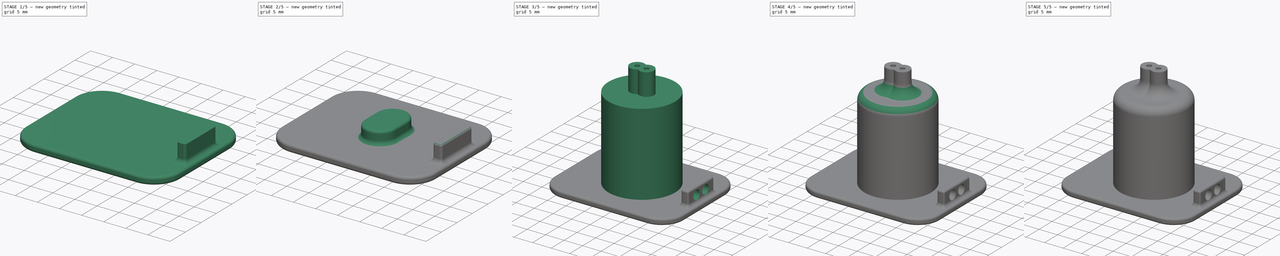
[diagram: build sequence overview — one tinted view per stage of 5, left to right]
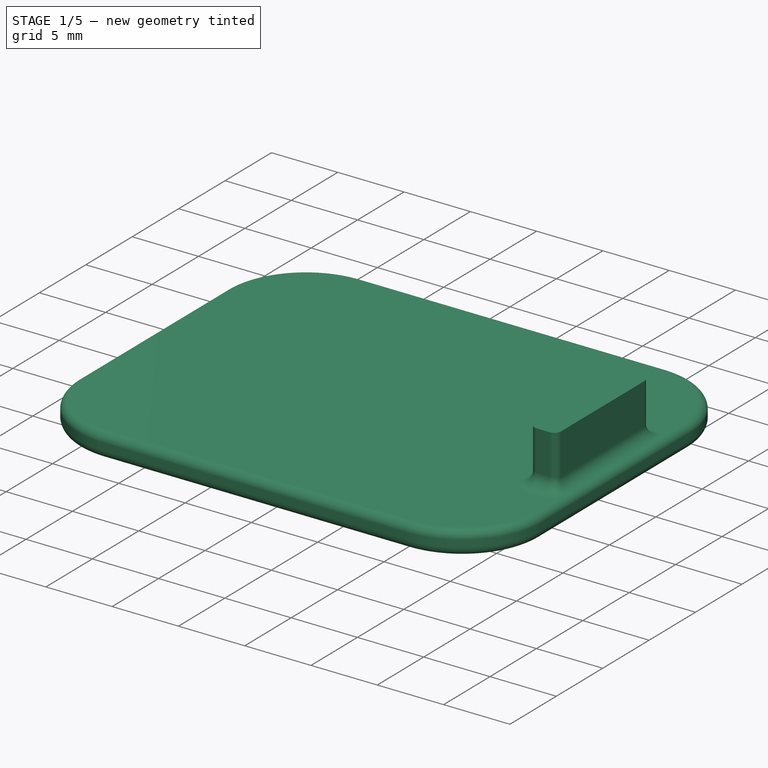
[diagram: stage 1 of 5 — iso view after this stage's code; geometry added in this stage tinted green]
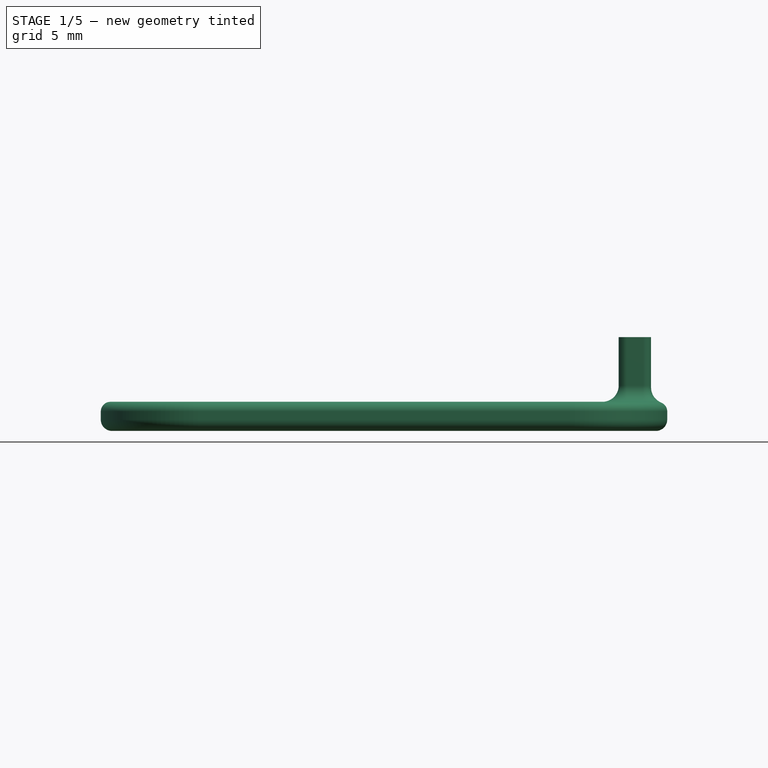
[diagram: stage 1 of 5 — front view after this stage's code; geometry added in this stage tinted green]
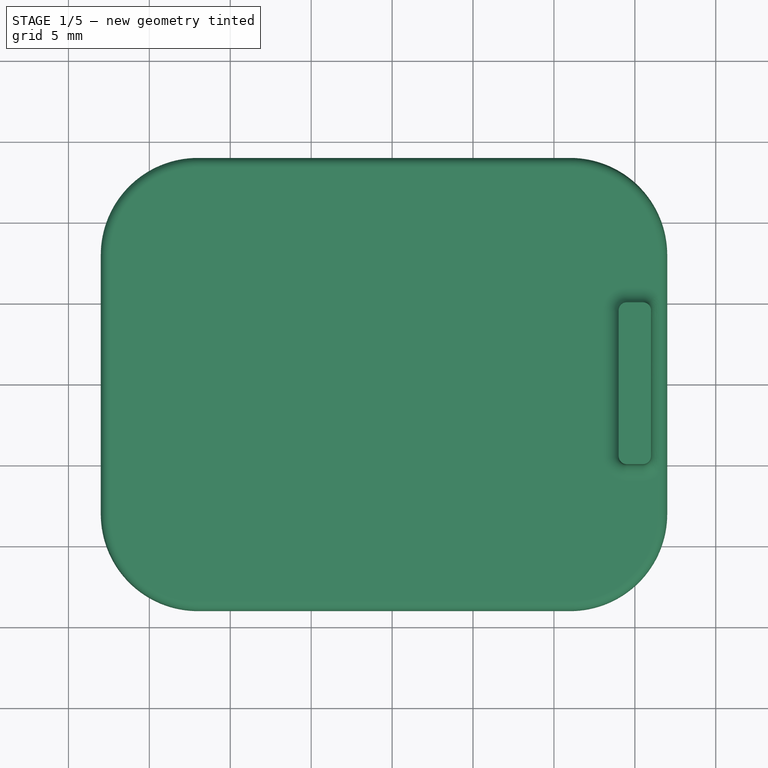
[diagram: stage 1 of 5 — top view after this stage's code; geometry added in this stage tinted green]
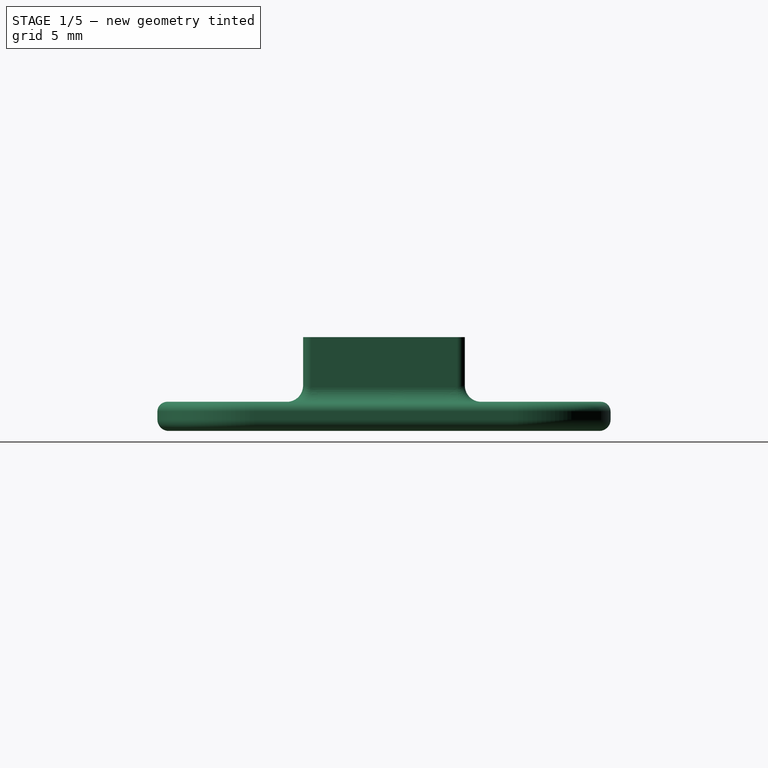
[diagram: stage 1 of 5 — right view after this stage's code; geometry added in this stage tinted green]
FCSTD DOCUMENT  (FreeCAD 0.20R29177 +426 (Git))
Label: Holder
License: All rights reserved
LicenseURL: http://en.wikipedia.org/wiki/All_rights_reserved
objects: PartDesign::Fillet×13, Sketcher::SketchObject×12, PartDesign::Pad×5, PartDesign::Pocket×5, PartDesign::Body×3, PartDesign::Revolution×2, PartDesign::Chamfer×2
note: 69 computed .brp shape members not serialized (recipe doc carries the construction recipe); baked Part::Feature solids carry a one-line shape summary decoded from their .brp

FEATURE [PartDesign::Body] Body002  label="Lens_14mm"
  Group = -> [Sketch003,Revolution001,Sketch004,Pad001,Sketch005,Pocket001,Chamfer001,Fillet003,Fillet004,Fillet005]
  Origin = -> Origin002
  Tip = -> Fillet005
FEATURE [Sketcher::SketchObject] Sketch006
  FullyConstrained = true
  MapMode = 5
  Support = -> [XY_Plane003]
  sketch-geometry (12):
    g0: LineSegment StartX=-12 StartY=14 StartZ=0 EndX=11 EndY=14 EndZ=0
    g1: LineSegment StartX=17 StartY=8 StartZ=0 EndX=17 EndY=-8 EndZ=0
    g2: LineSegment StartX=11 StartY=-14 StartZ=0 EndX=-12 EndY=-14 EndZ=0
    g3: LineSegment StartX=-18 StartY=-8 StartZ=0 EndX=-18 EndY=8 EndZ=0
    g4: ArcOfCircle CenterX=-12 CenterY=8 CenterZ=0 NormalX=0 NormalY=0 NormalZ=1 AngleXU=0 Radius=6 StartAngle=1.5708 EndAngle=3.14159
    g5: GeomPoint X=-18 Y=14 Z=0
    g6: ArcOfCircle CenterX=11 CenterY=8 CenterZ=0 NormalX=0 NormalY=0 NormalZ=1 AngleXU=0 Radius=6 StartAngle=0 EndAngle=1.5708
    g7: GeomPoint X=17 Y=14 Z=0
    g8: ArcOfCircle CenterX=11 CenterY=-8 CenterZ=0 NormalX=0 NormalY=0 NormalZ=1 AngleXU=0 Radius=6 StartAngle=4.71239 EndAngle=6.28319
    g9: GeomPoint X=17 Y=-14 Z=0
    g10: ArcOfCircle CenterX=-12 CenterY=-8 CenterZ=0 NormalX=0 NormalY=0 NormalZ=1 AngleXU=0 Radius=6 StartAngle=3.14159 EndAngle=4.71239
    g11: GeomPoint X=-18 Y=-14 Z=0
  constraints (28):
    c: Horizontal(g0)
    c: Horizontal(g2)
    c: Vertical(g1)
    c: Vertical(g3)
    c: DistanceY(g9,g7) = 28
    c: DistanceX(g11,g9) = 35
    c: PointOnObject(g5,g3)
    c: PointOnObject(g5,g0)
    c: Tangent(g3,g4) = 1.5708
    c: Tangent(g0,g4) = 1.5708
    c: PointOnObject(g7,g0)
    c: PointOnObject(g7,g1)
    c: Tangent(g0,g6) = 1.5708
    c: Tangent(g1,g6) = 1.5708
    c: PointOnObject(g9,g2)
    c: PointOnObject(g9,g1)
    c: Tangent(g2,g8) = 1.5708
    c: Tangent(g1,g8) = 1.5708
    c: PointOnObject(g11,g2)
    c: PointOnObject(g11,g3)
    c: Tangent(g2,g10) = 1.5708
    c: Tangent(g3,g10) = 1.5708
    c: Radius(g4) = 6
    c: Radius(g6) = 6
    c: Radius(g8) = 6
    c: Radius(g10) = 6
    c: DistanceY(g-1,g0) = 14
    c: DistanceX(g3,g-1) = 18
FEATURE [PartDesign::Pad] Pad002
  Direction = (0,0,1)
  Length = 1.8
  Length2 = 10
  Profile = -> Sketch006
  ReferenceAxis = -> Sketch006 [N_Axis]
  Type = 0
FEATURE [PartDesign::Fillet] Fillet006
  Base = -> Pad002 [Edge23,Edge21,Edge18,Edge15,Edge12,Edge9,Edge6,Edge3]
  BaseFeature = -> Pad002
  Radius = 0.7
  SupportTransform = false
  UseAllEdges = false
FEATURE [PartDesign::Fillet] Fillet007
  Base = -> Fillet006 [Edge3,Edge11,Edge12,Edge13,Edge14,Edge15,Edge16,Edge6]
  BaseFeature = -> Fillet006
  Radius = 0.6
  SupportTransform = false
  UseAllEdges = false
FEATURE [Sketcher::SketchObject] Sketch007
  FullyConstrained = true
  MapMode = 5
  Placement = pos=(0,0,1.8) rot=(0,0,1;0rad)
  Support = -> [Fillet007]
  sketch-geometry (12):
    g0: LineSegment StartX=14.5 StartY=5 StartZ=0 EndX=15.5 EndY=5 EndZ=0
    g1: LineSegment StartX=16 StartY=4.5 StartZ=0 EndX=16 EndY=-4.5 EndZ=0
    g2: LineSegment StartX=15.5 StartY=-5 StartZ=0 EndX=14.5 EndY=-5 EndZ=0
    g3: LineSegment StartX=14 StartY=-4.5 StartZ=0 EndX=14 EndY=4.5 EndZ=0
    g4: ArcOfCircle CenterX=14.5 CenterY=4.5 CenterZ=0 NormalX=0 NormalY=0 NormalZ=1 AngleXU=0 Radius=0.5 StartAngle=1.5708 EndAngle=3.14159
    g5: GeomPoint X=14 Y=5 Z=0
    g6: ArcOfCircle CenterX=15.5 CenterY=4.5 CenterZ=0 NormalX=0 NormalY=0 NormalZ=1 AngleXU=0 Radius=0.5 StartAngle=0 EndAngle=1.5708
    g7: GeomPoint X=16 Y=5 Z=0
    g8: ArcOfCircle CenterX=15.5 CenterY=-4.5 CenterZ=0 NormalX=0 NormalY=0 NormalZ=1 AngleXU=0 Radius=0.5 StartAngle=4.71239 EndAngle=6.28319
    g9: GeomPoint X=16 Y=-5 Z=0
    g10: ArcOfCircle CenterX=14.5 CenterY=-4.5 CenterZ=0 NormalX=0 NormalY=0 NormalZ=1 AngleXU=0 Radius=0.5 StartAngle=3.14159 EndAngle=4.71239
    g11: GeomPoint X=14 Y=-5 Z=0
  constraints (28):
    c: Horizontal(g0)
    c: Horizontal(g2)
    c: Vertical(g1)
    c: Vertical(g3)
    c: DistanceY(g9,g7) = 10
    c: DistanceY(g9,g-1) = 5
    c: DistanceX(g11,g9) = 2
    c: DistanceX(g-1,g11) = 14
    c: PointOnObject(g5,g3)
    c: PointOnObject(g5,g0)
    c: Tangent(g3,g4) = 1.5708
    c: Tangent(g0,g4) = 1.5708
    c: PointOnObject(g7,g0)
    c: PointOnObject(g7,g1)
    c: Tangent(g0,g6) = 1.5708
    c: Tangent(g1,g6) = 1.5708
    c: PointOnObject(g9,g1)
    c: PointOnObject(g9,g2)
    c: Tangent(g1,g8) = 1.5708
    c: Tangent(g2,g8) = 1.5708
    c: PointOnObject(g11,g2)
    c: PointOnObject(g11,g3)
    c: Tangent(g2,g10) = 1.5708
    c: Tangent(g3,g10) = 1.5708
    c: Radius(g6) = 0.5
    c: Radius(g4) = 0.5
    c: Equal(g8,g10)
    c: Radius(g8) = 0.5
FEATURE [PartDesign::Pad] Pad003
  BaseFeature = -> Fillet007
  Direction = (0,0,1)
  Length = 4
  Length2 = 10
  Profile = -> Sketch007
  ReferenceAxis = -> Sketch007 [N_Axis]
  Type = 0
FEATURE [PartDesign::Fillet] Fillet008
  Base = -> Pad003 [Edge31]
  BaseFeature = -> Pad003
  Radius = 1
  SupportTransform = false
  UseAllEdges = false
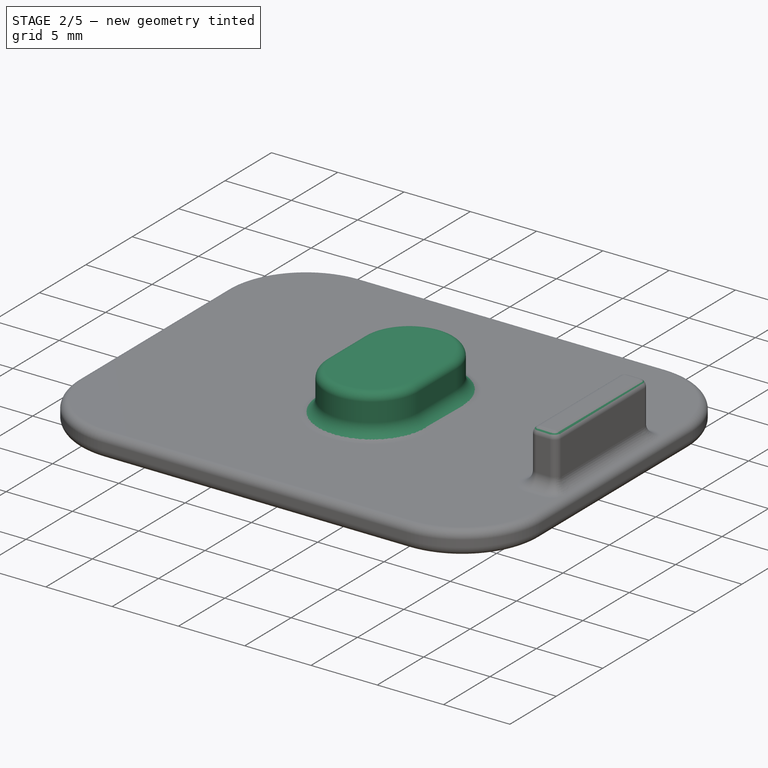
[diagram: stage 2 of 5 — iso view after this stage's code; geometry added in this stage tinted green]
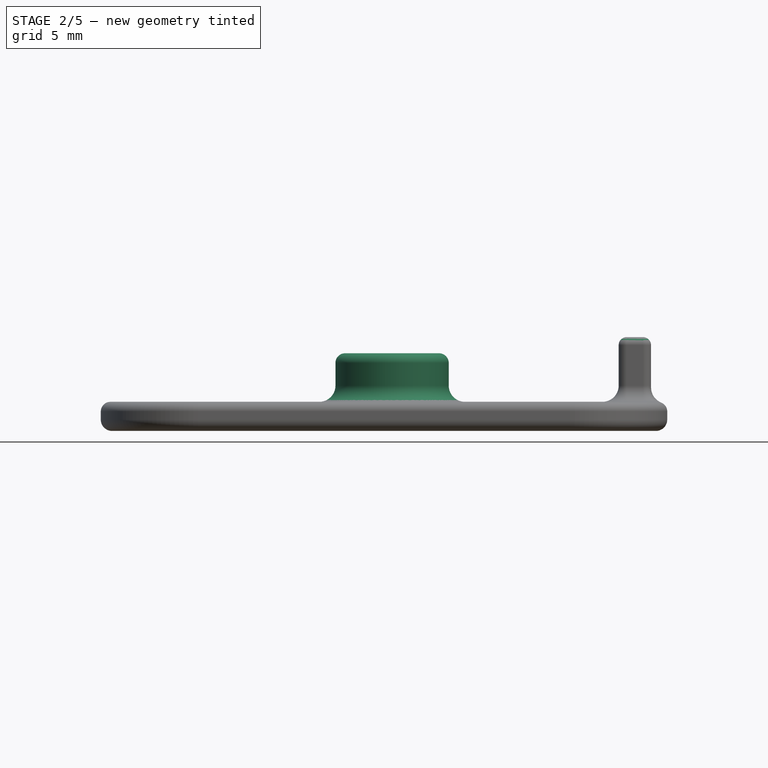
[diagram: stage 2 of 5 — front view after this stage's code; geometry added in this stage tinted green]
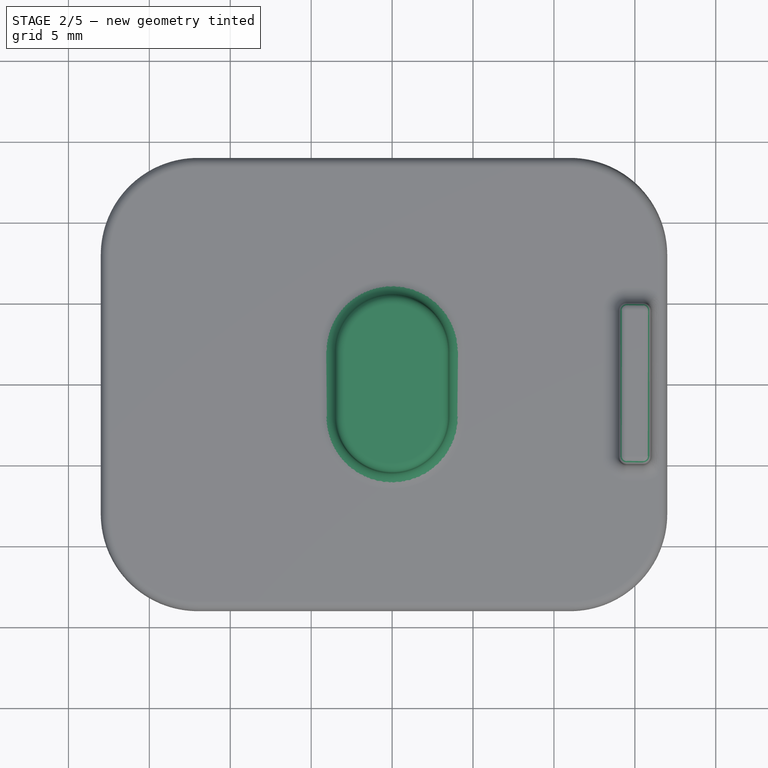
[diagram: stage 2 of 5 — top view after this stage's code; geometry added in this stage tinted green]
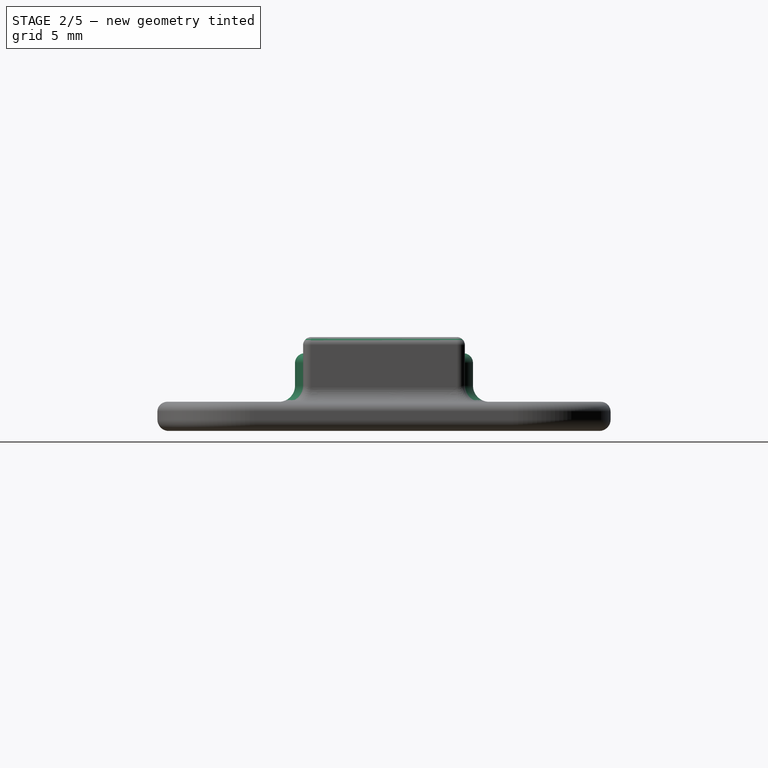
[diagram: stage 2 of 5 — right view after this stage's code; geometry added in this stage tinted green]
FEATURE [PartDesign::Fillet] Fillet009
  Base = -> Fillet008 [Edge81]
  BaseFeature = -> Fillet008
  Radius = 0.5
  SupportTransform = false
  UseAllEdges = false
FEATURE [Sketcher::SketchObject] Sketch008
  FullyConstrained = true
  MapMode = 5
  Placement = pos=(0,0,1.8) rot=(0,0,1;0rad)
  Support = -> [Fillet009]
  sketch-geometry (4):
    g0: ArcOfCircle CenterX=0 CenterY=2 CenterZ=0 NormalX=0 NormalY=0 NormalZ=1 AngleXU=0 Radius=3.5 StartAngle=-5.6e-14 EndAngle=3.14159
    g1: ArcOfCircle CenterX=0 CenterY=-2 CenterZ=0 NormalX=0 NormalY=0 NormalZ=1 AngleXU=0 Radius=3.5 StartAngle=3.14159 EndAngle=6.28319
    g2: LineSegment StartX=-3.5 StartY=2 StartZ=0 EndX=-3.5 EndY=-2 EndZ=0
    g3: LineSegment StartX=3.5 StartY=-2 StartZ=0 EndX=3.5 EndY=2 EndZ=0
  constraints (10):
    c: Tangent(g0,g2) = -1.5708
    c: Tangent(g2,g1) = -1.5708
    c: Tangent(g1,g3) = -1.5708
    c: Tangent(g3,g0) = -1.5708
    c: Equal(g0,g1)
    c: PointOnObject(g0,g-2)
    c: PointOnObject(g1,g-2)
    c: DistanceY(g1,g-1) = 2
    c: DistanceY(g-1,g0) = 2
    c: DistanceX(g0,g0) = 7
FEATURE [PartDesign::Pad] Pad004
  BaseFeature = -> Fillet009
  Direction = (0,0,1)
  Length = 3
  Length2 = 10
  Profile = -> Sketch008
  ReferenceAxis = -> Sketch008 [N_Axis]
  Type = 0
FEATURE [Sketcher::SketchObject] Sketch009
  FullyConstrained = true
  MapMode = 5
  Placement = pos=(0,0,0) rot=(1,0,0;3.14159rad)
  Support = -> [Pad004]
  sketch-geometry (4):
    g0: ArcOfCircle CenterX=0 CenterY=0.7 CenterZ=0 NormalX=0 NormalY=0 NormalZ=1 AngleXU=0 Radius=2.4 StartAngle=0 EndAngle=3.14159
    g1: ArcOfCircle CenterX=0 CenterY=-0.7 CenterZ=0 NormalX=0 NormalY=0 NormalZ=1 AngleXU=0 Radius=2.4 StartAngle=3.14159 EndAngle=6.28319
    g2: LineSegment StartX=-2.4 StartY=0.7 StartZ=0 EndX=-2.4 EndY=-0.7 EndZ=0
    g3: LineSegment StartX=2.4 StartY=-0.7 StartZ=0 EndX=2.4 EndY=0.7 EndZ=0
  constraints (10):
    c: Tangent(g0,g2) = -1.5708
    c: Tangent(g2,g1) = -1.5708
    c: Tangent(g1,g3) = -1.5708
    c: Tangent(g3,g0) = -1.5708
    c: Equal(g0,g1)
    c: PointOnObject(g0,g-2)
    c: PointOnObject(g1,g-2)
    c: DistanceX(g1,g1) = 4.8
    c: DistanceY(g-1,g0) = 0.7
    c: DistanceY(g1,g-1) = 0.7
FEATURE [PartDesign::Pocket] Pocket002
  BaseFeature = -> Pad004
  Direction = (0,0,1)
  Length = 3.5
  Length2 = 5
  Profile = -> Sketch009
  ReferenceAxis = -> Sketch009 [N_Axis]
  Type = 0
FEATURE [PartDesign::Fillet] Fillet010
  Base = -> Pocket002 [Edge129]
  BaseFeature = -> Pocket002
  Radius = 0.6
  SupportTransform = false
  UseAllEdges = false
FEATURE [PartDesign::Fillet] Fillet011
  Base = -> Fillet010 [Edge88]
  BaseFeature = -> Fillet010
  Radius = 1
  SupportTransform = false
  UseAllEdges = false
FEATURE [PartDesign::Fillet] Fillet012
  Base = -> Fillet011 [Edge64]
  BaseFeature = -> Fillet011
  Radius = 0.6
  SupportTransform = false
  UseAllEdges = false
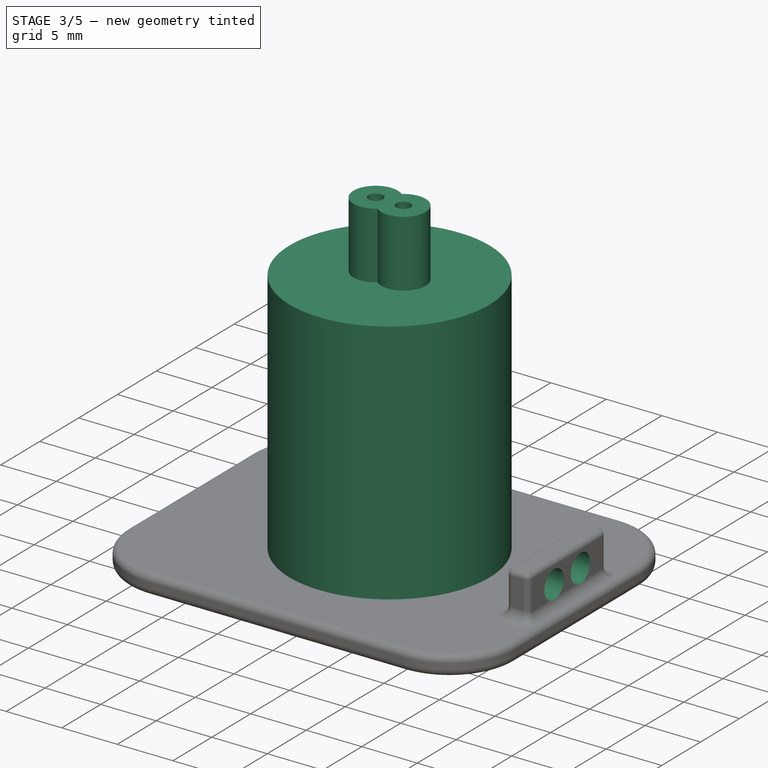
[diagram: stage 3 of 5 — iso view after this stage's code; geometry added in this stage tinted green]
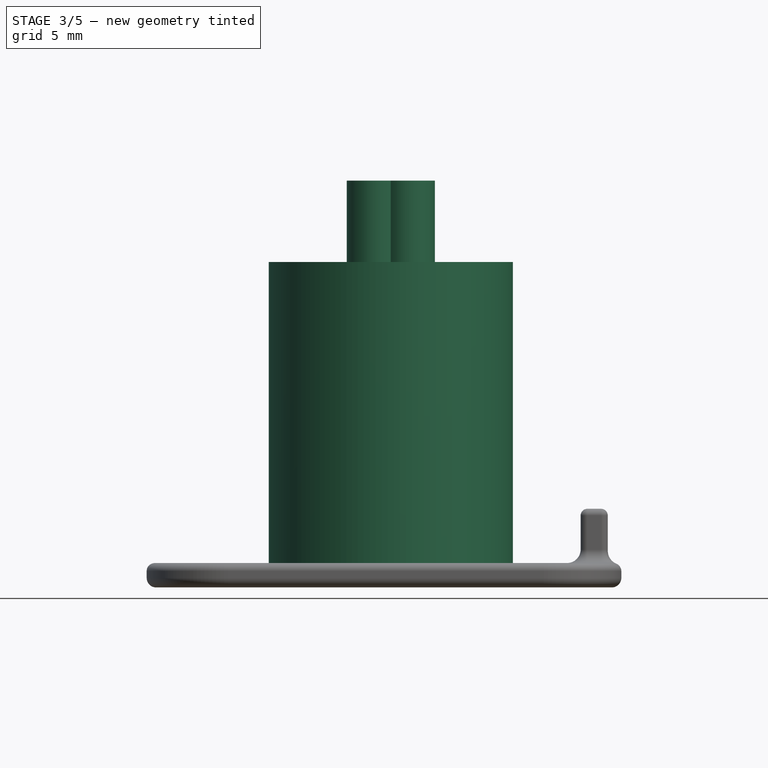
[diagram: stage 3 of 5 — front view after this stage's code; geometry added in this stage tinted green]
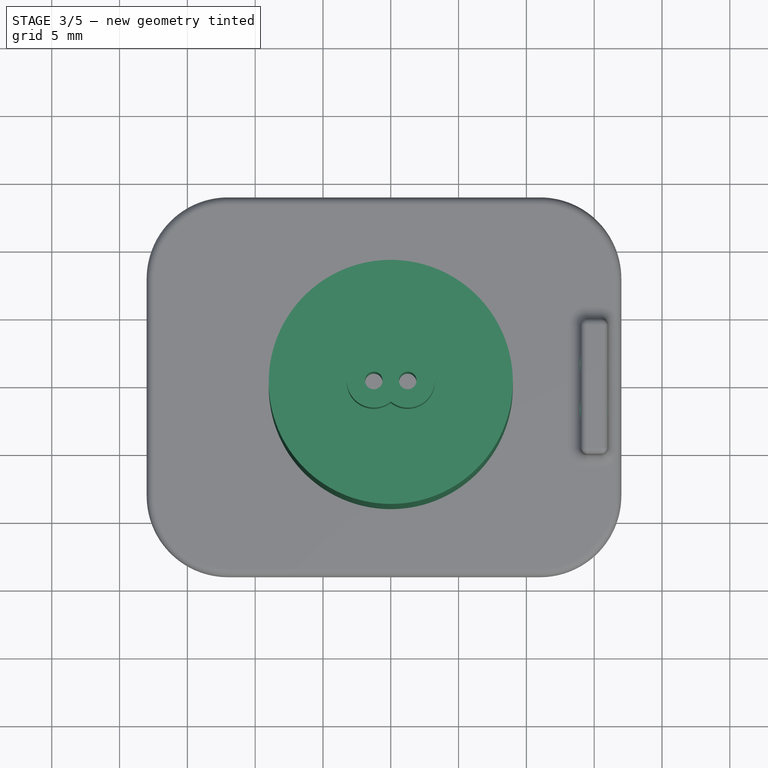
[diagram: stage 3 of 5 — top view after this stage's code; geometry added in this stage tinted green]
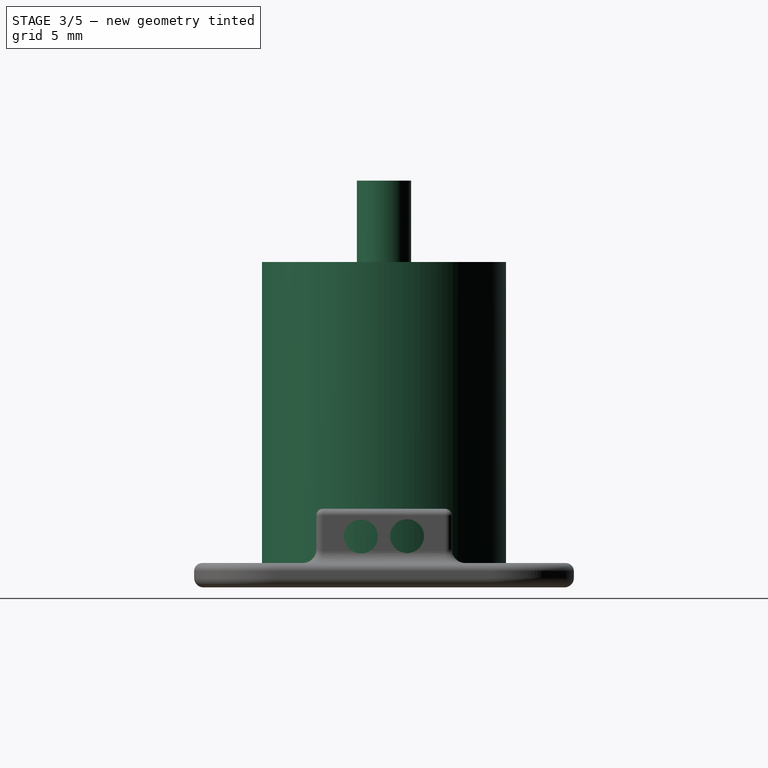
[diagram: stage 3 of 5 — right view after this stage's code; geometry added in this stage tinted green]
FEATURE [PartDesign::Body] Body  label="Lens_9mm"
  Group = -> [Sketch,Revolution,Sketch001,Pad,Sketch002,Pocket,Chamfer,Fillet,Fillet001,Fillet002]
  Origin = -> Origin
  Placement = pos=(20,0,0) rot=(0,0,1;0rad)
  Tip = -> Fillet002
FEATURE [Sketcher::SketchObject] Sketch003
  FullyConstrained = false
  MapMode = 5
  Placement = pos=(0,0,0) rot=(1,0,0;1.5708rad)
  Support = -> [XZ_Plane002]
  sketch-geometry (10):
    g0: LineSegment StartX=7 StartY=0 StartZ=0 EndX=7 EndY=8 EndZ=0
    g1: LineSegment StartX=7 StartY=8 StartZ=0 EndX=2.7 EndY=18.5 EndZ=0
    g2: LineSegment StartX=2.7 StartY=18.5 StartZ=0 EndX=2.7 EndY=19.5 EndZ=0
    g3: LineSegment StartX=2.7 StartY=19.5 StartZ=0 EndX=3.1 EndY=19.5 EndZ=0
    g4: LineSegment StartX=3.1 StartY=19.5 StartZ=0 EndX=3.1 EndY=21 EndZ=0
    g5: LineSegment StartX=3.1 StartY=21 StartZ=0 EndX=0 EndY=21 EndZ=0
    g6: LineSegment StartX=0 StartY=21 StartZ=0 EndX=0 EndY=24 EndZ=0
    g7: LineSegment StartX=0 StartY=24 StartZ=0 EndX=9 EndY=24 EndZ=0
    g8: LineSegment StartX=9 StartY=24 StartZ=0 EndX=9 EndY=0 EndZ=0
    g9: LineSegment StartX=9 StartY=0 StartZ=0 EndX=7 EndY=0 EndZ=0
  constraints (29):
    c: PointOnObject(g0,g-1)
    c: Vertical(g0)
    c: Coincident(g0,g1)
    c: Coincident(g1,g2)
    c: Coincident(g2,g3)
    c: Coincident(g3,g4)
    c: Coincident(g4,g5)
    c: Horizontal(g5)
    c: Coincident(g5,g6)
    c: PointOnObject(g6,g-2)
    c: Vertical(g6)
    c: Coincident(g6,g7)
    c: Horizontal(g7)
    c: Coincident(g7,g8)
    c: Vertical(g8)
    c: Coincident(g8,g9)
    c: Coincident(g9,g0)
    c: Horizontal(g9)
    c: DistanceX(g-1,g0) = 7
    c: DistanceX(g-1,g8) = 9
    c: DistanceY(g0,g0) = 8
    c: DistanceY(g4,g4) = 1.5
    c: DistanceX(g5,g5) = 3.1
    c: DistanceY(g0,g4) = 13
    c: Parallel(g-2,g2)
    c: DistanceY(g2,g2) = 1
    c: Perpendicular(g-2,g3)
    c: DistanceY(g8,g8) = 24
    c: DistanceX(g-1,g1) = 2.7
FEATURE [PartDesign::Revolution] Revolution001
  Angle = 360
  Axis = (0,-2e-16,1)
  Base = (0,0,0)
  Placement = pos=(0,0,0) rot=(1,0,0;1.5708rad)
  Profile = -> Sketch003
  ReferenceAxis = -> Sketch003 [V_Axis]
  Reversed = true
FEATURE [Sketcher::SketchObject] Sketch004
  FullyConstrained = false
  MapMode = 5
  Placement = pos=(0,5.3e-15,24) rot=(0,0,1;3.14159rad)
  Support = -> [Revolution001]
  sketch-geometry (2):
    g0: ArcOfCircle CenterX=1.25 CenterY=-3.03479e-07 CenterZ=0 NormalX=0 NormalY=0 NormalZ=1 AngleXU=0 Radius=1.99686 StartAngle=4.03761 EndAngle=8.52876
    g1: ArcOfCircle CenterX=-1.25 CenterY=0 CenterZ=0 NormalX=0 NormalY=0 NormalZ=1 AngleXU=0 Radius=2 StartAngle=0.894054 EndAngle=5.38913
  constraints (2):
    c: Coincident(g1,g0)
    c: Coincident(g1,g0)
FEATURE [PartDesign::Pad] Pad001
  BaseFeature = -> Revolution001
  Direction = (0,-2e-16,1)
  Length = 6
  Length2 = 10
  Placement = pos=(0,0,0) rot=(1,0,0;1.5708rad)
  Profile = -> Sketch004
  ReferenceAxis = -> Sketch004 [N_Axis]
  Type = 0
FEATURE [Sketcher::SketchObject] Sketch005
  FullyConstrained = true
  MapMode = 5
  Placement = pos=(0,6.7e-15,30) rot=(0,0,1;3.14159rad)
  Support = -> [Pad001]
  sketch-geometry (2):
    g0: Circle CenterX=-1.25 CenterY=0 CenterZ=0 NormalX=0 NormalY=0 NormalZ=1 AngleXU=0 Radius=0.65
    g1: Circle CenterX=1.25 CenterY=0 CenterZ=0 NormalX=0 NormalY=0 NormalZ=1 AngleXU=0 Radius=0.65
  constraints (6):
    c: PointOnObject(g0,g-1)
    c: PointOnObject(g1,g-1)
    c: DistanceX(g0,g-1) = 1.25
    c: DistanceX(g-1,g1) = 1.25
    c: Equal(g0,g1)
    c: Diameter(g0) = 1.3
FEATURE [PartDesign::Pocket] Pocket001
  BaseFeature = -> Pad001
  Direction = (0,0,-1)
  Length = 10
  Length2 = 5
  Placement = pos=(0,0,0) rot=(1,0,0;1.5708rad)
  Profile = -> Sketch005
  ReferenceAxis = -> Sketch005 [N_Axis]
  Type = 0
FEATURE [Sketcher::SketchObject] Sketch010
  FullyConstrained = false
  MapMode = 5
  Placement = pos=(3.5,0,0) rot=(0.57735,0.57735,0.57735;2.0944rad)
  Support = -> [Fillet012]
  sketch-geometry (2):
    g0: Circle CenterX=-1.7 CenterY=3.49047 CenterZ=0 NormalX=0 NormalY=0 NormalZ=1 AngleXU=0 Radius=0.75
    g1: Circle CenterX=1.7 CenterY=3.48031 CenterZ=0 NormalX=0 NormalY=0 NormalZ=1 AngleXU=0 Radius=0.75
  constraints (4):
    c: DistanceX(g-1,g1) = 1.7
    c: DistanceX(g0,g-1) = 1.7
    c: Equal(g1,g0)
    c: Diameter(g1) = 1.5
FEATURE [PartDesign::Pocket] Pocket003
  BaseFeature = -> Fillet012
  Direction = (-1,0,0)
  Length = 4.3
  Length2 = 5
  Profile = -> Sketch010
  ReferenceAxis = -> Sketch010 [N_Axis]
  Type = 0
FEATURE [Sketcher::SketchObject] Sketch011
  FullyConstrained = false
  MapMode = 5
  Placement = pos=(16,0,0) rot=(0.57735,0.57735,0.57735;2.0944rad)
  Support = -> [Pocket003]
  sketch-geometry (2):
    g0: Circle CenterX=-1.7 CenterY=3.75016 CenterZ=0 NormalX=0 NormalY=0 NormalZ=1 AngleXU=0 Radius=1.25
    g1: Circle CenterX=1.7 CenterY=3.78064 CenterZ=0 NormalX=0 NormalY=0 NormalZ=1 AngleXU=0 Radius=1.25
  constraints (4):
    c: DistanceX(g-1,g1) = 1.7
    c: DistanceX(g0,g-1) = 1.7
    c: Equal(g0,g1)
    c: Diameter(g0) = 2.5
FEATURE [PartDesign::Pocket] Pocket004
  BaseFeature = -> Pocket003
  Direction = (-1,0,0)
  Length = 5
  Length2 = 5
  Midplane = true
  Profile = -> Sketch011
  ReferenceAxis = -> Sketch011 [N_Axis]
  Type = 0
FEATURE [PartDesign::Body] Body003  label="PhotoResistor"
  Group = -> [Sketch006,Pad002,Fillet006,Fillet007,Sketch007,Pad003,Fillet008,Fillet009,Sketch008,Pad004,Sketch009,Pocket002,Fillet010,Fillet011,Fillet012,Sketch010,Pocket003,Sketch011,Pocket004]
  Origin = -> Origin003
  Placement = pos=(10,27,0) rot=(0,0,1;0rad)
  Tip = -> Pocket004
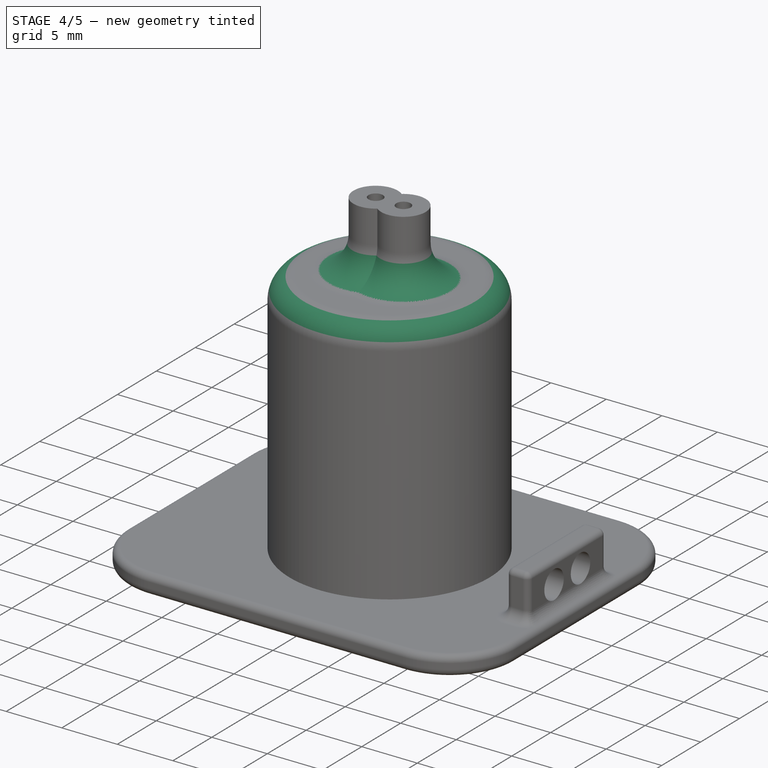
[diagram: stage 4 of 5 — iso view after this stage's code; geometry added in this stage tinted green]
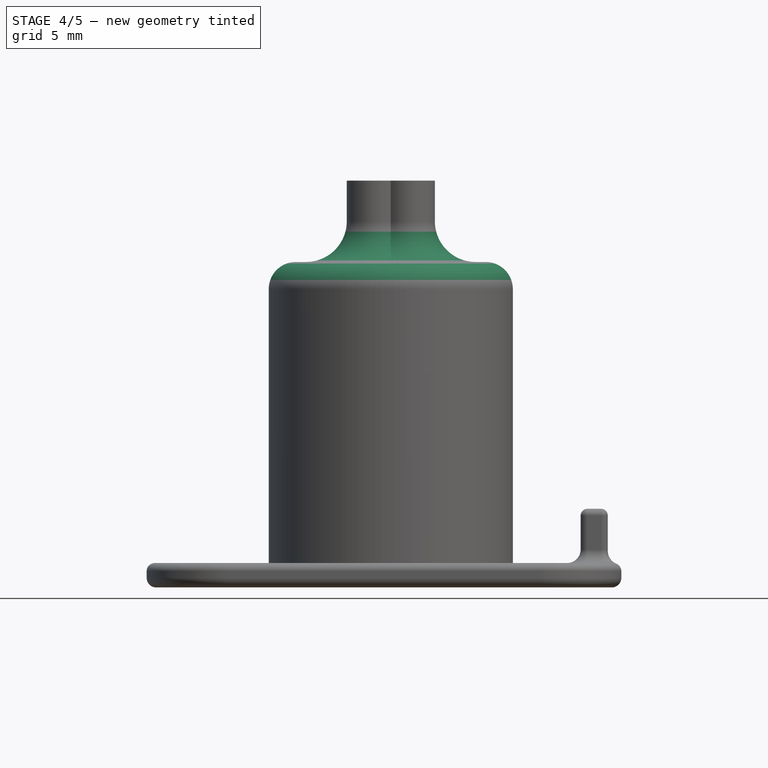
[diagram: stage 4 of 5 — front view after this stage's code; geometry added in this stage tinted green]
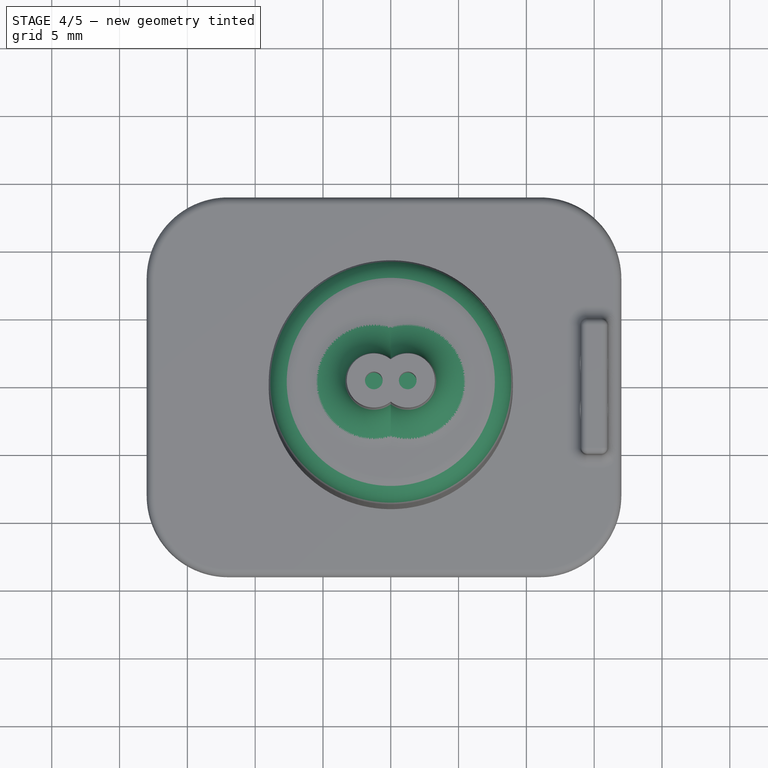
[diagram: stage 4 of 5 — top view after this stage's code; geometry added in this stage tinted green]
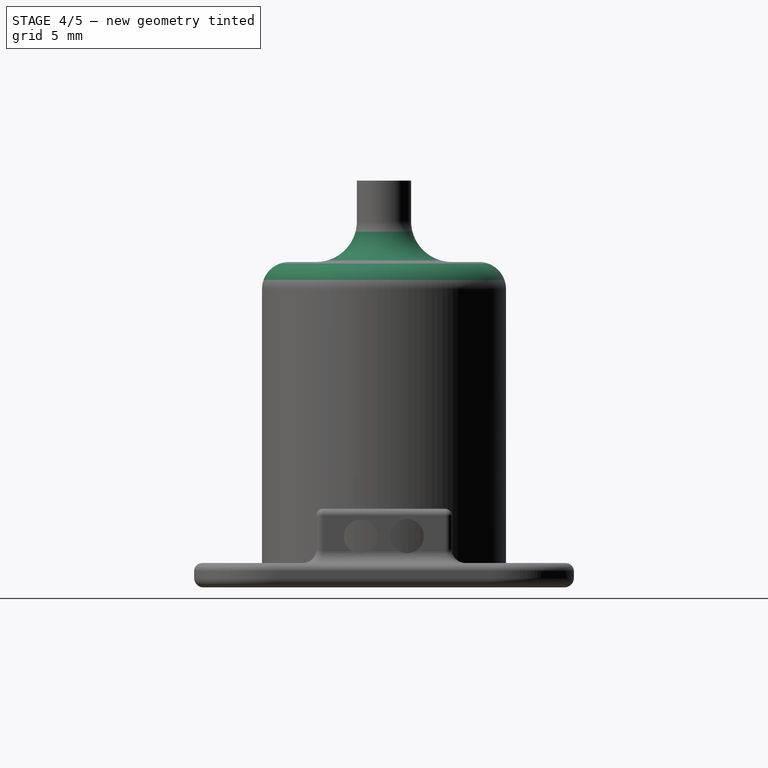
[diagram: stage 4 of 5 — right view after this stage's code; geometry added in this stage tinted green]
FEATURE [Sketcher::SketchObject] Sketch
  FullyConstrained = true
  MapMode = 5
  Placement = pos=(0,0,0) rot=(1,0,0;1.5708rad)
  Support = -> [XZ_Plane]
  sketch-geometry (10):
    g0: LineSegment StartX=4.6 StartY=0 StartZ=0 EndX=4.6 EndY=7 EndZ=0
    g1: LineSegment StartX=4.6 StartY=7 StartZ=0 EndX=2.7 EndY=14.5 EndZ=0
    g2: LineSegment StartX=2.7 StartY=14.5 StartZ=0 EndX=2.7 EndY=15.5 EndZ=0
    g3: LineSegment StartX=2.7 StartY=15.5 StartZ=0 EndX=3.1 EndY=15.5 EndZ=0
    g4: LineSegment StartX=3.1 StartY=15.5 StartZ=0 EndX=3.1 EndY=17 EndZ=0
    g5: LineSegment StartX=3.1 StartY=17 StartZ=0 EndX=0 EndY=17 EndZ=0
    g6: LineSegment StartX=0 StartY=17 StartZ=0 EndX=0 EndY=20 EndZ=0
    g7: LineSegment StartX=0 StartY=20 StartZ=0 EndX=7 EndY=20 EndZ=0
    g8: LineSegment StartX=7 StartY=20 StartZ=0 EndX=7 EndY=0 EndZ=0
    g9: LineSegment StartX=7 StartY=0 StartZ=0 EndX=4.6 EndY=0 EndZ=0
  constraints (30):
    c: PointOnObject(g0,g-1)
    c: Vertical(g0)
    c: Coincident(g0,g1)
    c: Coincident(g1,g2)
    c: Coincident(g2,g3)
    c: Coincident(g3,g4)
    c: Vertical(g4)
    c: Coincident(g4,g5)
    c: Horizontal(g5)
    c: Coincident(g5,g6)
    c: PointOnObject(g6,g-2)
    c: Vertical(g6)
    c: Coincident(g6,g7)
    c: Horizontal(g7)
    c: Coincident(g7,g8)
    c: Vertical(g8)
    c: Coincident(g8,g9)
    c: Coincident(g9,g0)
    c: Horizontal(g9)
    c: DistanceX(g-1,g0) = 4.6
    c: DistanceX(g-1,g8) = 7
    c: DistanceY(g0,g0) = 7
    c: DistanceY(g4,g4) = 1.5
    c: DistanceX(g5,g5) = 3.1
    c: DistanceY(g0,g4) = 10
    c: Parallel(g-2,g2)
    c: DistanceY(g2,g2) = 1
    c: Perpendicular(g-2,g3)
    c: DistanceY(g8,g8) = 20
    c: DistanceX(g-1,g1) = 2.7
FEATURE [PartDesign::Revolution] Revolution
  Angle = 360
  Axis = (0,-2e-16,1)
  Base = (0,0,0)
  Placement = pos=(0,0,0) rot=(1,0,0;1.5708rad)
  Profile = -> Sketch
  ReferenceAxis = -> Sketch [V_Axis]
  Reversed = true
FEATURE [Sketcher::SketchObject] Sketch001
  FullyConstrained = false
  MapMode = 5
  Placement = pos=(0,4.4e-15,20) rot=(0,0,1;3.14159rad)
  Support = -> [Revolution]
  sketch-geometry (2):
    g0: ArcOfCircle CenterX=1.25 CenterY=-3.03479e-07 CenterZ=0 NormalX=0 NormalY=0 NormalZ=1 AngleXU=0 Radius=1.99686 StartAngle=4.03761 EndAngle=8.52876
    g1: ArcOfCircle CenterX=-1.25 CenterY=0 CenterZ=0 NormalX=0 NormalY=0 NormalZ=1 AngleXU=0 Radius=2 StartAngle=0.894054 EndAngle=5.38913
  constraints (2):
    c: Coincident(g1,g0)
    c: Coincident(g1,g0)
FEATURE [PartDesign::Pad] Pad
  BaseFeature = -> Revolution
  Direction = (0,-2e-16,1)
  Length = 6
  Length2 = 10
  Placement = pos=(0,0,0) rot=(1,0,0;1.5708rad)
  Profile = -> Sketch001
  ReferenceAxis = -> Sketch001 [N_Axis]
  Type = 0
FEATURE [PartDesign::Chamfer] Chamfer001
  Angle = 45
  Base = -> Pocket001 [Edge1]
  BaseFeature = -> Pocket001
  ChamferType = 0
  FlipDirection = false
  Placement = pos=(0,0,0) rot=(1,0,0;1.5708rad)
  Size = 0.7
  Size2 = 1
  SupportTransform = false
  UseAllEdges = false
FEATURE [PartDesign::Fillet] Fillet003
  Base = -> Chamfer001 [Edge8]
  BaseFeature = -> Chamfer001
  Placement = pos=(0,0,0) rot=(1,0,0;1.5708rad)
  Radius = 1
  SupportTransform = false
  UseAllEdges = false
FEATURE [PartDesign::Fillet] Fillet004
  Base = -> Fillet003 [Edge8]
  BaseFeature = -> Fillet003
  Placement = pos=(0,0,0) rot=(1,0,0;1.5708rad)
  Radius = 2
  SupportTransform = false
  UseAllEdges = false
FEATURE [PartDesign::Fillet] Fillet005
  Base = -> Fillet004 [Edge8,Edge9]
  BaseFeature = -> Fillet004
  Placement = pos=(0,0,0) rot=(1,0,0;1.5708rad)
  Radius = 3
  SupportTransform = false
  UseAllEdges = false
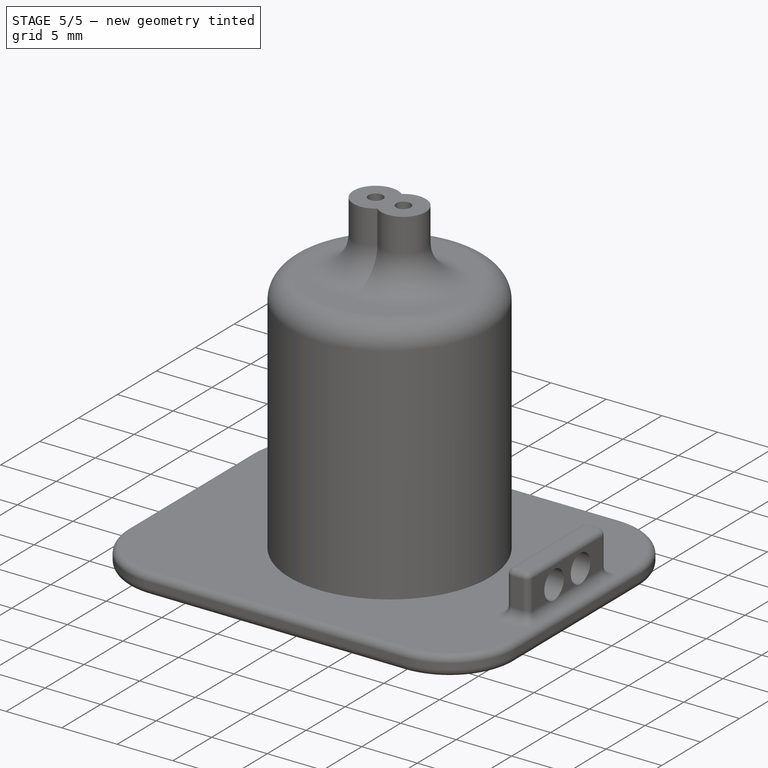
[diagram: stage 5 of 5 — iso view after this stage's code; geometry added in this stage tinted green]
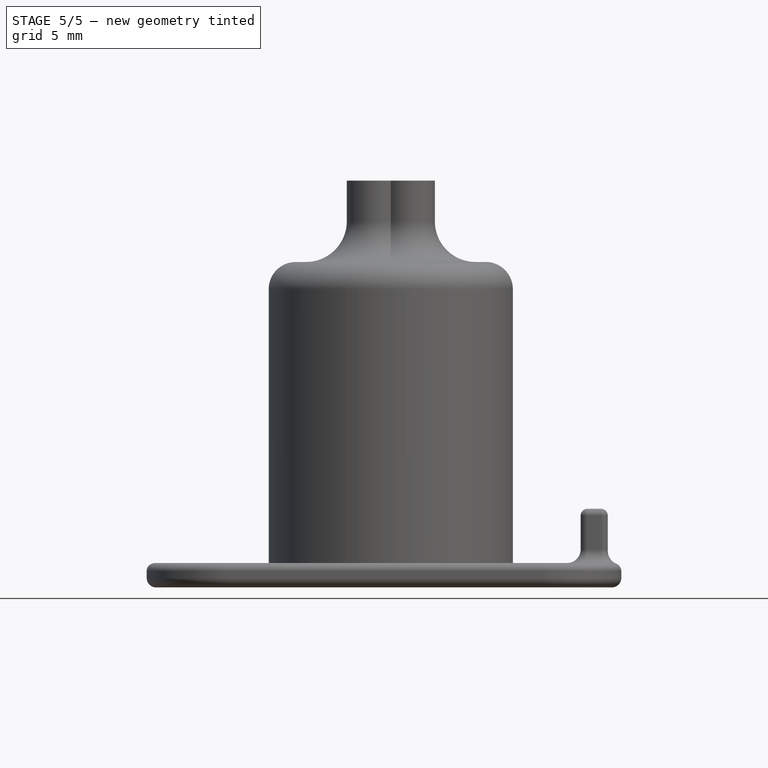
[diagram: stage 5 of 5 — front view after this stage's code; geometry added in this stage tinted green]
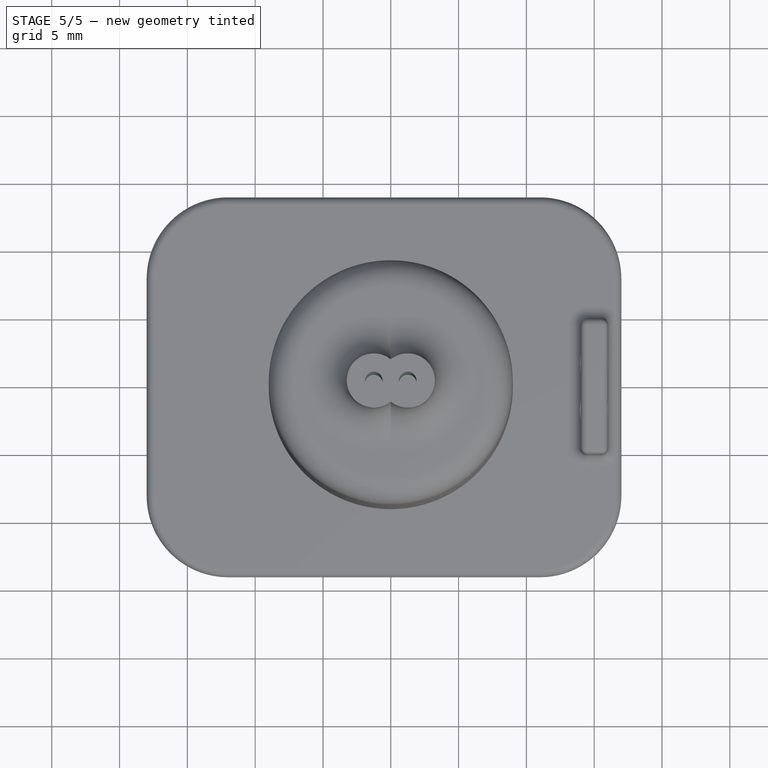
[diagram: stage 5 of 5 — top view after this stage's code; geometry added in this stage tinted green]
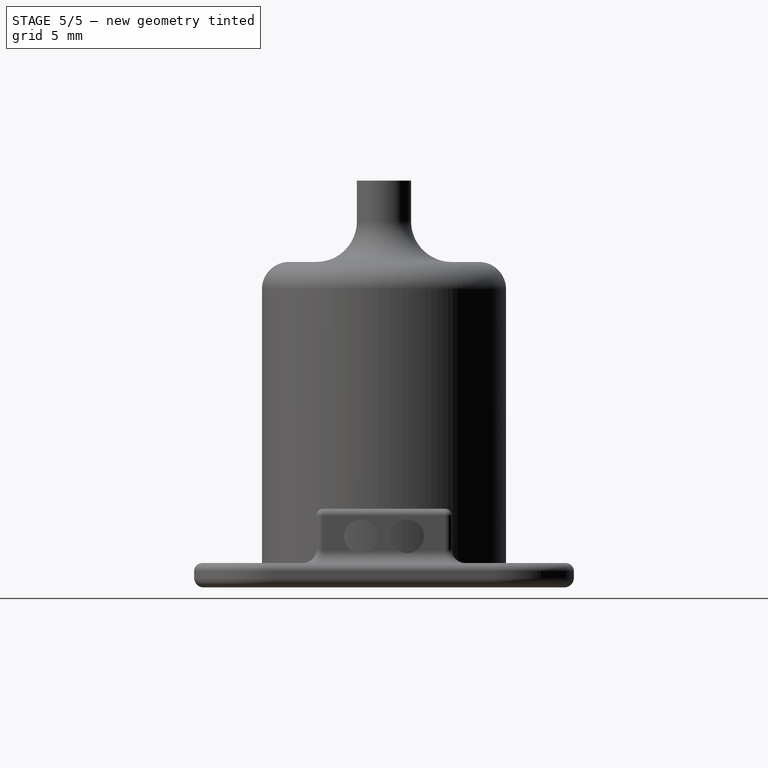
[diagram: stage 5 of 5 — right view after this stage's code; geometry added in this stage tinted green]
FEATURE [Sketcher::SketchObject] Sketch002
  FullyConstrained = true
  MapMode = 5
  Placement = pos=(0,5.8e-15,26) rot=(0,0,1;3.14159rad)
  Support = -> [Pad]
  sketch-geometry (2):
    g0: Circle CenterX=-1.25 CenterY=0 CenterZ=0 NormalX=0 NormalY=0 NormalZ=1 AngleXU=0 Radius=0.65
    g1: Circle CenterX=1.25 CenterY=0 CenterZ=0 NormalX=0 NormalY=0 NormalZ=1 AngleXU=0 Radius=0.65
  constraints (6):
    c: PointOnObject(g0,g-1)
    c: PointOnObject(g1,g-1)
    c: DistanceX(g0,g-1) = 1.25
    c: DistanceX(g-1,g1) = 1.25
    c: Equal(g0,g1)
    c: Diameter(g0) = 1.3
FEATURE [PartDesign::Pocket] Pocket
  BaseFeature = -> Pad
  Direction = (0,0,-1)
  Length = 10
  Length2 = 5
  Placement = pos=(0,0,0) rot=(1,0,0;1.5708rad)
  Profile = -> Sketch002
  ReferenceAxis = -> Sketch002 [N_Axis]
  Type = 0
FEATURE [PartDesign::Chamfer] Chamfer
  Angle = 45
  Base = -> Pocket [Edge1]
  BaseFeature = -> Pocket
  ChamferType = 0
  FlipDirection = false
  Placement = pos=(0,0,0) rot=(1,0,0;1.5708rad)
  Size = 0.7
  Size2 = 1
  SupportTransform = false
  UseAllEdges = false
FEATURE [PartDesign::Fillet] Fillet
  Base = -> Chamfer [Edge8]
  BaseFeature = -> Chamfer
  Placement = pos=(0,0,0) rot=(1,0,0;1.5708rad)
  Radius = 1
  SupportTransform = false
  UseAllEdges = false
FEATURE [PartDesign::Fillet] Fillet001
  Base = -> Fillet [Edge8]
  BaseFeature = -> Fillet
  Placement = pos=(0,0,0) rot=(1,0,0;1.5708rad)
  Radius = 2
  SupportTransform = false
  UseAllEdges = false
FEATURE [PartDesign::Fillet] Fillet002
  Base = -> Fillet001 [Edge8,Edge9]
  BaseFeature = -> Fillet001
  Placement = pos=(0,0,0) rot=(1,0,0;1.5708rad)
  Radius = 2
  SupportTransform = false
  UseAllEdges = false
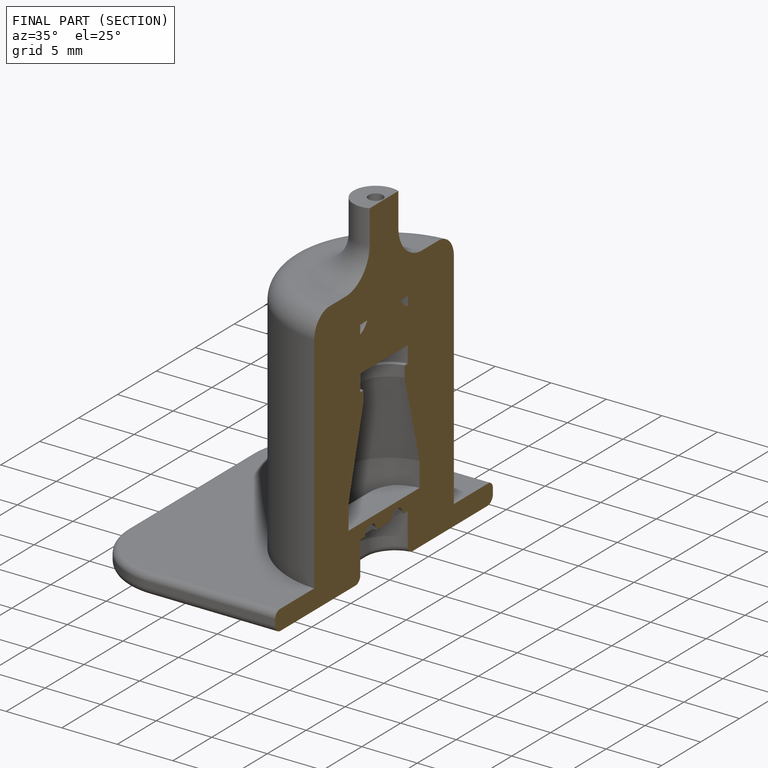
[diagram: finished part — half-section view (interior)]
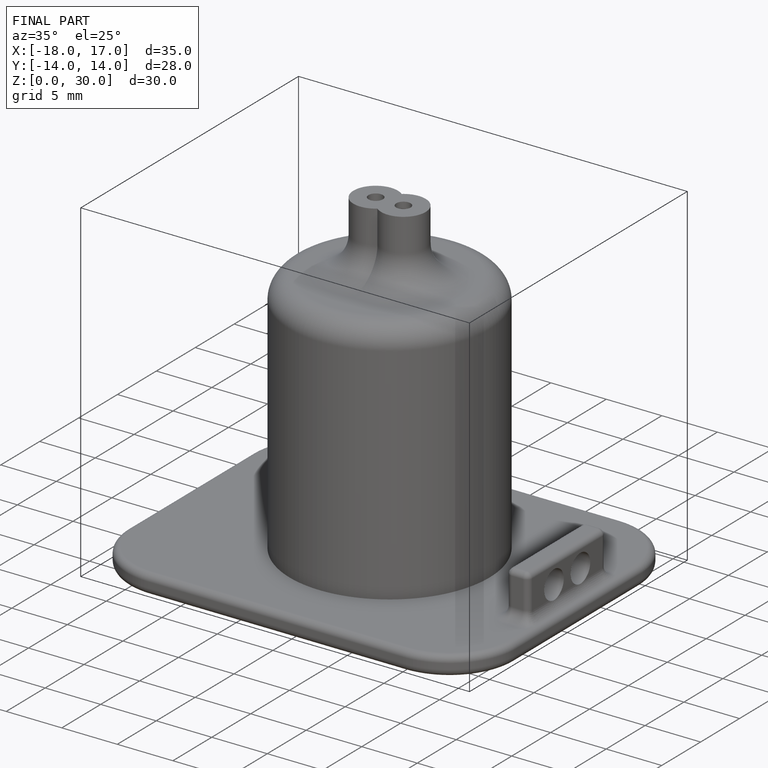
[diagram: finished part — iso view with bounding-box wireframe]
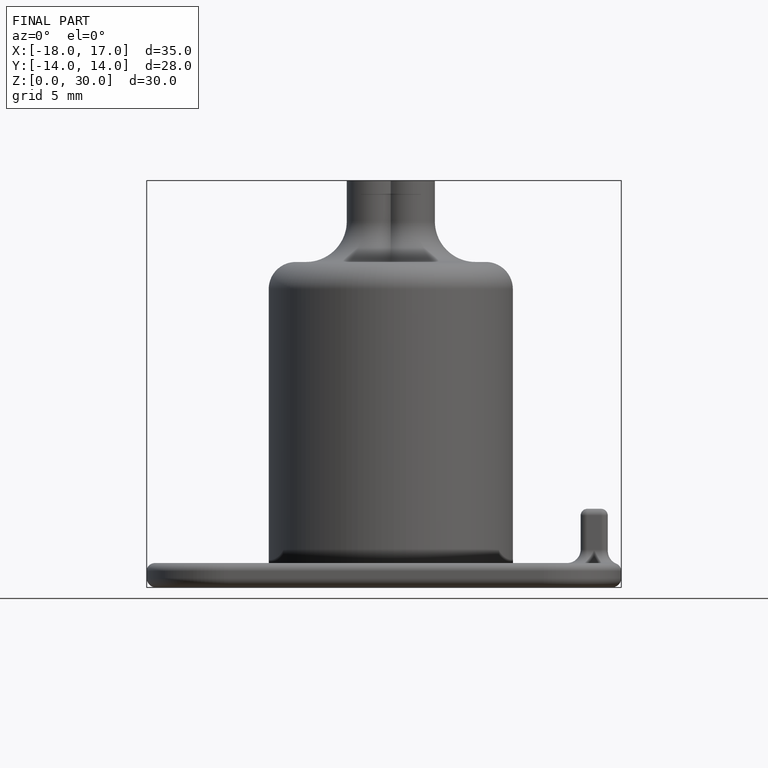
[diagram: finished part — front view with bounding-box wireframe]
